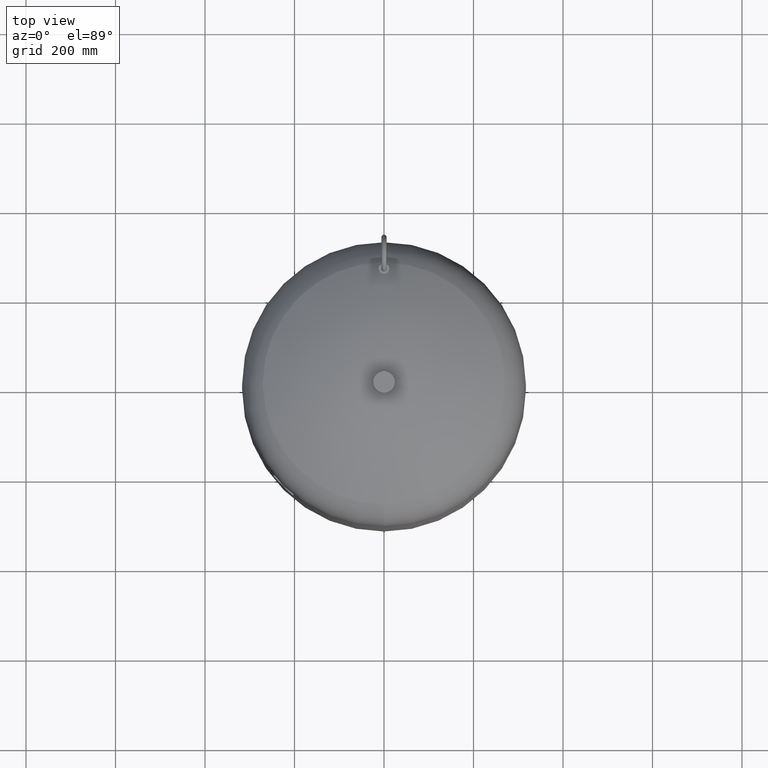
[diagram: clean part render]
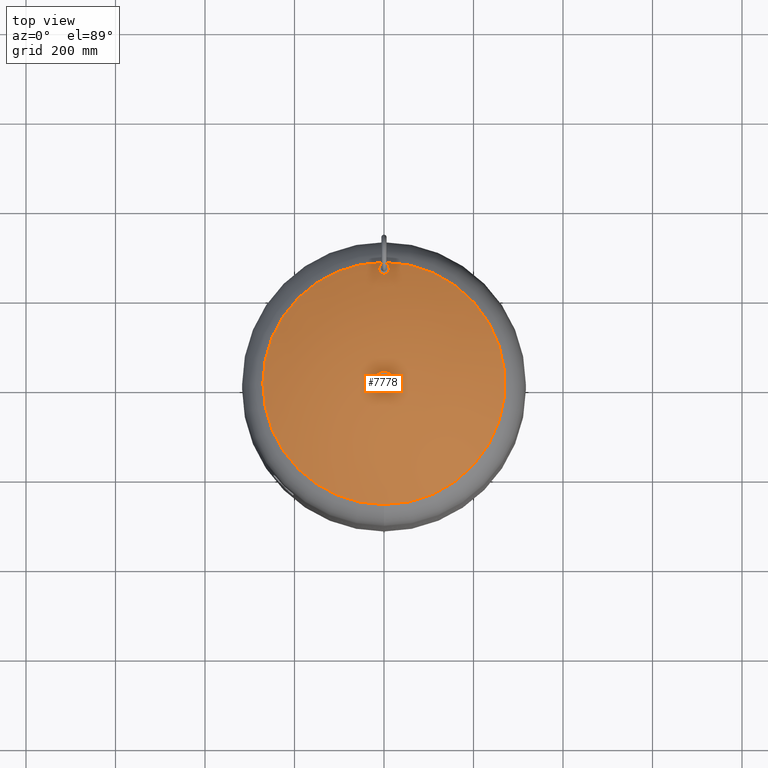
[diagram: same view with one face highlighted and labeled with its STEP entity id]
A machine part, top view. The second image highlights one B-rep face of the part: STEP entity #7778.
In plain terms, the highlighted spherical surface has radius 509 mm.
Its self-contained STEP definition (entity closure, byte-faithful):
#7577=CARTESIAN_POINT('',(-2.507790E-014,270.639024390243830,1152.086439681297600));
#7578=VERTEX_POINT('',#7577);
#7594=CARTESIAN_POINT('',(8.066920E-015,-270.639024390243830,1152.086439681297600));
#7595=VERTEX_POINT('',#7594);
#7603=CARTESIAN_POINT('',(-270.639024390243830,-9.289573E-015,1152.086439681297600));
#7604=VERTEX_POINT('',#7603);
#7605=CARTESIAN_POINT('',(-7.495146E-015,2.385415E-014,1152.086439681297600));
#7606=DIRECTION('',(0.0,0.0,-1.0));
#7607=DIRECTION('',(-1.0,0.0,0.0));
#7608=AXIS2_PLACEMENT_3D('',#7605,#7606,#7607);
#7609=CIRCLE('',#7608,270.639024390243830);
#7610=EDGE_CURVE('',#7595,#7604,#7609,.T.);
#7612=CARTESIAN_POINT('',(-7.495146E-015,2.385415E-014,1152.086439681297600));
#7613=DIRECTION('',(0.0,0.0,-1.0));
#7614=DIRECTION('',(-1.0,0.0,0.0));
#7615=AXIS2_PLACEMENT_3D('',#7612,#7613,#7614);
#7616=CIRCLE('',#7615,270.639024390243830);
#7617=EDGE_CURVE('',#7604,#7578,#7616,.T.);
#7629=CARTESIAN_POINT('',(10.650000000000000,255.0,1161.389120551359800));
#7630=VERTEX_POINT('',#7629);
#7646=CARTESIAN_POINT('',(-10.650000000000000,255.0,1161.389120551359800));
#7647=VERTEX_POINT('',#7646);
#7654=CARTESIAN_POINT('',(10.650000000000000,255.0,1161.389120551359800));
#7655=CARTESIAN_POINT('',(10.650000000000000,254.326748717196270,1161.778955515720300));
#7656=CARTESIAN_POINT('',(10.585220072615542,253.627481117249890,1162.183323778697700));
#7657=CARTESIAN_POINT('',(10.307864350647622,252.228966869996010,1162.990913307625800));
#7658=CARTESIAN_POINT('',(10.095349894853550,251.529711519847300,1163.394140567522300));
#7659=CARTESIAN_POINT('',(9.525203903742550,250.180302434543250,1164.171269645931000));
#7660=CARTESIAN_POINT('',(9.167213590602126,249.529344938389950,1164.545637484240800));
#7661=CARTESIAN_POINT('',(8.326107983132362,248.318548235305570,1165.241194453939400));
#7662=CARTESIAN_POINT('',(7.842892526302415,247.758763438179780,1165.562357172752900));
#7663=CARTESIAN_POINT('',(6.867966745182802,246.836956155071900,1166.090764980765000));
#7664=CARTESIAN_POINT('',(6.359129404699843,246.431109295653070,1166.323202539145500));
#7665=CARTESIAN_POINT('',(5.244190668078532,245.706836978958620,1166.737740831113600));
#7666=CARTESIAN_POINT('',(4.638071279012406,245.388434456868820,1166.919833242377500));
#7667=CARTESIAN_POINT('',(3.365529955566814,244.872457982812190,1167.214797691499800));
#7668=CARTESIAN_POINT('',(2.697850103617892,244.674435213646460,1167.327930012684200));
#7669=CARTESIAN_POINT('',(1.347119099386700,244.413170754422540,1167.477172970363200));
#7670=CARTESIAN_POINT('',(0.664049905031437,244.349999999999990,1167.513244484416200));
#7671=CARTESIAN_POINT('',(-0.664049905031437,244.349999999999990,1167.513244484416200));
#7672=CARTESIAN_POINT('',(-1.347119099386709,244.413170754422570,1167.477172970363200));
#7673=CARTESIAN_POINT('',(-2.697850103617900,244.674435213646490,1167.327930012684200));
#7674=CARTESIAN_POINT('',(-3.365529955566823,244.872457982812140,1167.214797691499800));
#7675=CARTESIAN_POINT('',(-4.638071279012413,245.388434456868820,1166.919833242377500));
#7676=CARTESIAN_POINT('',(-5.244190668078504,245.706836978958590,1166.737740831113600));
#7677=CARTESIAN_POINT('',(-6.359129404699819,246.431109295653040,1166.323202539145500));
#7678=CARTESIAN_POINT('',(-6.867966745182800,246.836956155071900,1166.090764980765000));
#7679=CARTESIAN_POINT('',(-7.842892526302414,247.758763438179780,1165.562357172752900));
#7680=CARTESIAN_POINT('',(-8.326107983132383,248.318548235305600,1165.241194453939400));
#7681=CARTESIAN_POINT('',(-9.167213590602144,249.529344938389980,1164.545637484240800));
#7682=CARTESIAN_POINT('',(-9.525203903742554,250.180302434543250,1164.171269645931000));
#7683=CARTESIAN_POINT('',(-10.095349894853552,251.529711519847300,1163.394140567522300));
#7684=CARTESIAN_POINT('',(-10.307864350647622,252.228966869996010,1162.990913307625800));
#7685=CARTESIAN_POINT('',(-10.585220072615545,253.627481117249910,1162.183323778697700));
#7686=CARTESIAN_POINT('',(-10.650000000000000,254.326748717196320,1161.778955515720300));
#7687=CARTESIAN_POINT('',(-10.650000000000000,255.0,1161.389120551359800));
#7688=B_SPLINE_CURVE_WITH_KNOTS('',3,(#7654,#7655,#7656,#7657,#7658,#7659,#7660,#7661,#7662,#7663,#7664,#7665,#7666,#7667,#7668,#7669,#7670,#7671,#7672,#7673,#7674,#7675,#7676,#7677,#7678,#7679,#7680,#7681,#7682,#7683,#7684,#7685,#7686,#7687),.UNSPECIFIED.,.F.,.U.,(4,2,2,2,2,2,2,2,2,2,2,2,2,2,2,2,4),(0.0,2.333912445468889,4.667824890937778,7.001737336406667,9.335649781875556,11.327799496969867,13.319949212064179,15.312098927158491,17.304248642252801,19.296398357347115,21.288548072441426,23.280697787535736,25.272847502630050,27.606759948098940,29.940672393567827,32.274584839036713,34.608497284505603),.UNSPECIFIED.);
#7689=EDGE_CURVE('',#7630,#7647,#7688,.T.);
#7700=CARTESIAN_POINT('',(-10.650000000000000,255.0,1161.389120551359800));
#7701=CARTESIAN_POINT('',(-10.650000000000000,255.675125393890110,1160.998200414126600));
#7702=CARTESIAN_POINT('',(-10.584862730179971,256.375821446287430,1160.591940172001600));
#7703=CARTESIAN_POINT('',(-10.306520361596034,257.776300000955700,1159.778793700554200));
#7704=CARTESIAN_POINT('',(-10.093384129127154,258.476093019343580,1159.371902011463600));
#7705=CARTESIAN_POINT('',(-9.522072792656630,259.825945871775050,1158.585991001128100));
#7706=CARTESIAN_POINT('',(-9.163549399928684,260.476799630984710,1158.206512386761200));
#7707=CARTESIAN_POINT('',(-8.321547449266141,261.687138389832230,1157.500013409382100));
#7708=CARTESIAN_POINT('',(-7.837968350602099,262.246573358875990,1157.173027165268400));
#7709=CARTESIAN_POINT('',(-6.863368120745957,263.166805671529570,1156.634672532142100));
#7710=CARTESIAN_POINT('',(-6.355325208038355,263.571630732024800,1156.397623631365400));
#7711=CARTESIAN_POINT('',(-5.241911284432566,264.294373458551830,1155.974127820628600));
#7712=CARTESIAN_POINT('',(-4.636518857138515,264.612268781546390,1155.787699086451100));
#7713=CARTESIAN_POINT('',(-3.365115338338013,265.127636238533680,1155.485334476375300));
#7714=CARTESIAN_POINT('',(-2.697836814897009,265.325556502417560,1155.369139747436100));
#7715=CARTESIAN_POINT('',(-1.347456415279744,265.586774852117800,1155.215762273301600));
#7716=CARTESIAN_POINT('',(-0.664335385247097,265.649999999999980,1155.178623955625000));
#7717=CARTESIAN_POINT('',(0.664335385247093,265.649999999999980,1155.178623955625000));
#7718=CARTESIAN_POINT('',(1.347456415279740,265.586774852117800,1155.215762273301600));
#7719=CARTESIAN_POINT('',(2.697836814897007,265.325556502417560,1155.369139747436100));
#7720=CARTESIAN_POINT('',(3.365115338338012,265.127636238533680,1155.485334476375300));
#7721=CARTESIAN_POINT('',(4.636518857138518,264.612268781546390,1155.787699086451100));
#7722=CARTESIAN_POINT('',(5.241911284432570,264.294373458551830,1155.974127820628600));
#7723=CARTESIAN_POINT('',(6.355325208038357,263.571630732024800,1156.397623631365400));
#7724=CARTESIAN_POINT('',(6.863368120745960,263.166805671529570,1156.634672532142100));
#7725=CARTESIAN_POINT('',(7.837968350602102,262.246573358875990,1157.173027165268400));
#7726=CARTESIAN_POINT('',(8.321547449266120,261.687138389832280,1157.500013409382100));
#7727=CARTESIAN_POINT('',(9.163549399928662,260.476799630984770,1158.206512386761200));
#7728=CARTESIAN_POINT('',(9.522072792656626,259.825945871775100,1158.585991001128100));
#7729=CARTESIAN_POINT('',(10.093384129127152,258.476093019343580,1159.371902011463600));
#7730=CARTESIAN_POINT('',(10.306520361596032,257.776300000955700,1159.778793700554200));
#7731=CARTESIAN_POINT('',(10.584862730179969,256.375821446287430,1160.591940172001600));
#7732=CARTESIAN_POINT('',(10.650000000000002,255.675125393890140,1160.998200414126600));
#7733=CARTESIAN_POINT('',(10.650000000000000,255.0,1161.389120551359800));
#7734=B_SPLINE_CURVE_WITH_KNOTS('',3,(#7700,#7701,#7702,#7703,#7704,#7705,#7706,#7707,#7708,#7709,#7710,#7711,#7712,#7713,#7714,#7715,#7716,#7717,#7718,#7719,#7720,#7721,#7722,#7723,#7724,#7725,#7726,#7727,#7728,#7729,#7730,#7731,#7732,#7733),.UNSPECIFIED.,.F.,.U.,(4,2,2,2,2,2,2,2,2,2,2,2,2,2,2,2,4),(34.608497284505603,36.948906577883278,39.289315871260946,41.629725164638614,43.970134458016290,45.963140613757574,47.956146769498851,49.949152925240128,51.942159080981412,53.935165236722696,55.928171392463980,57.921177548205264,59.914183703946549,62.254592997324224,64.595002290701899,66.935411584079560,69.275820877457235),.UNSPECIFIED.);
#7735=EDGE_CURVE('',#7647,#7630,#7734,.T.);
#7758=CARTESIAN_POINT('',(-1.005746E-013,1.558363E-013,721.0));
#7759=DIRECTION('',(0.0,1.0,0.0));
#7760=DIRECTION('',(1.0,0.0,0.0));
#7761=AXIS2_PLACEMENT_3D('',#7758,#7759,#7760);
#7762=SPHERICAL_SURFACE('',#7761,509.000000000000060);
#7763=ORIENTED_EDGE('',*,*,#7689,.T.);
#7764=ORIENTED_EDGE('',*,*,#7735,.T.);
#7765=EDGE_LOOP('',(#7763,#7764));
#7766=FACE_OUTER_BOUND('',#7765,.T.);
#7767=ORIENTED_EDGE('',*,*,#7617,.F.);
#7768=ORIENTED_EDGE('',*,*,#7610,.F.);
#7769=CARTESIAN_POINT('',(-7.495146E-015,2.385415E-014,1152.086439681297600));
#7770=DIRECTION('',(0.0,0.0,-1.0));
#7771=DIRECTION('',(-1.0,0.0,0.0));
#7772=AXIS2_PLACEMENT_3D('',#7769,#7770,#7771);
#7773=CIRCLE('',#7772,270.639024390243830);
#7774=EDGE_CURVE('',#7578,#7595,#7773,.T.);
#7775=ORIENTED_EDGE('',*,*,#7774,.F.);
#7776=EDGE_LOOP('',(#7767,#7768,#7775));
#7777=FACE_BOUND('',#7776,.T.);
#7778=ADVANCED_FACE('',(#7766,#7777),#7762,.T.);